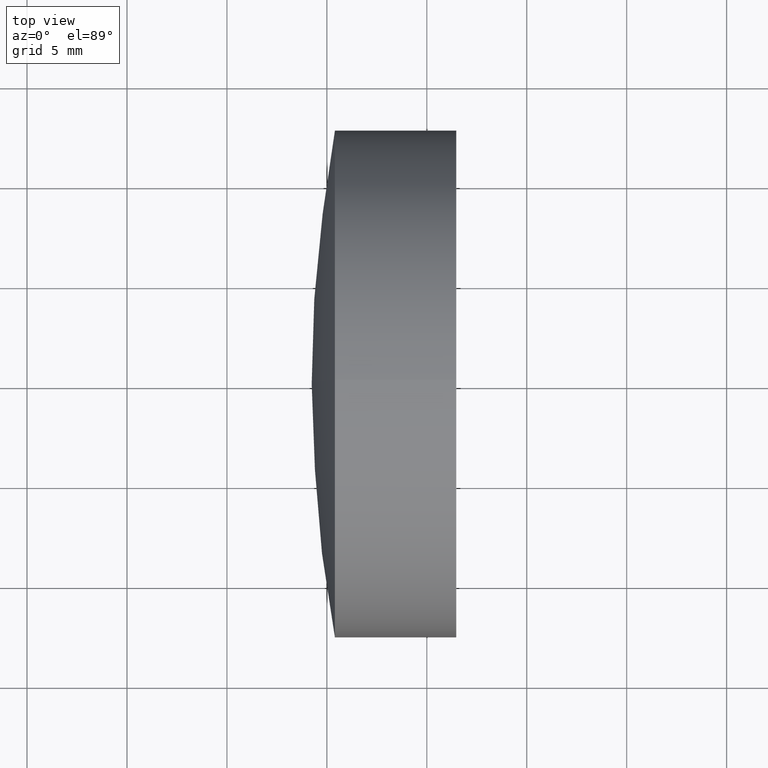
[diagram: clean part render]
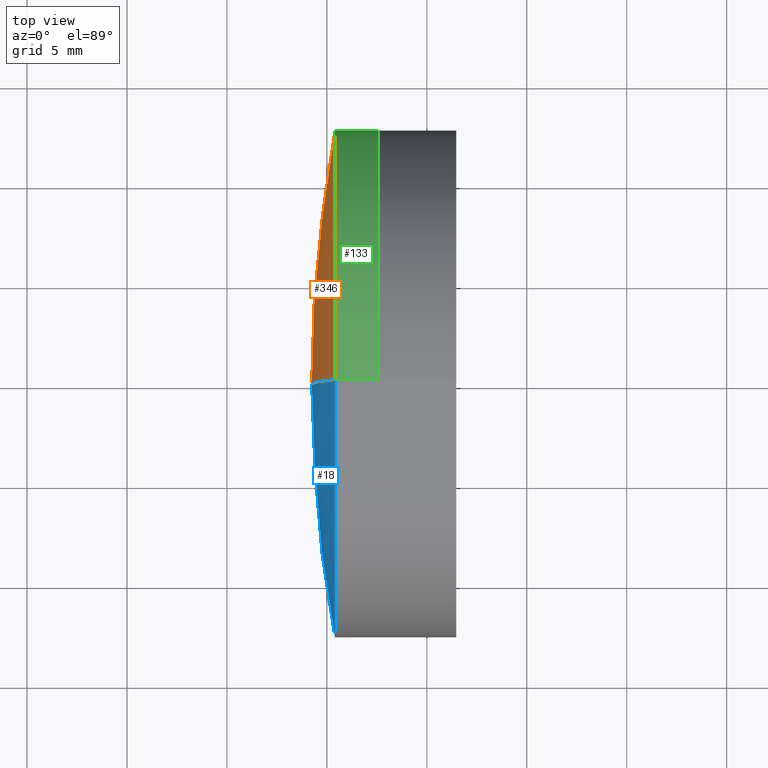
[diagram: same view with three faces highlighted in distinct colors, each labeled with its STEP entity id]
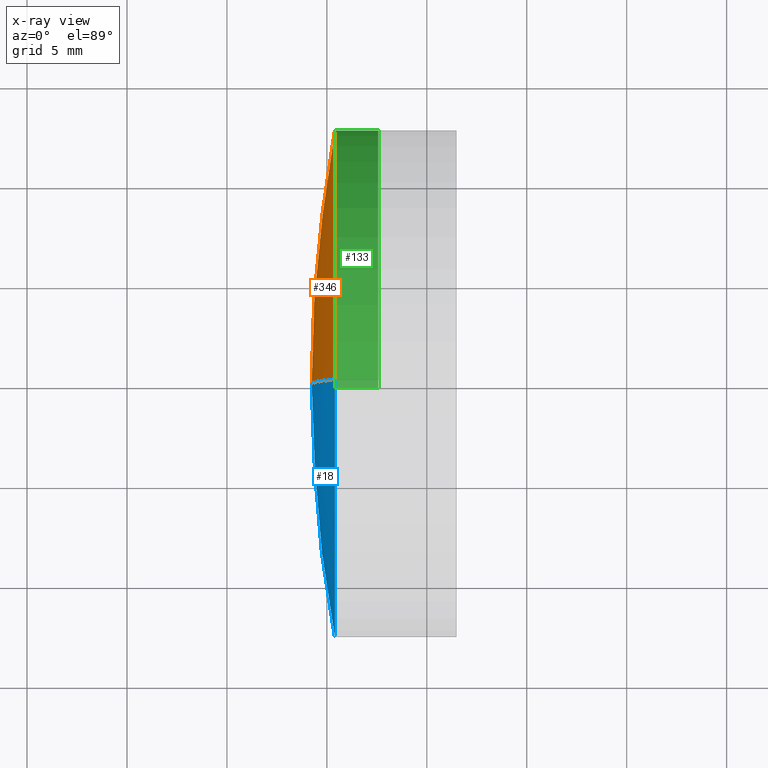
[diagram: x-ray of the same camera — body ghosted, the three highlighted faces saturated]
A machine part, top view with three faces highlighted in distinct colors.
The next image is the same camera in x-ray (body ghosted, the three faces saturated) — at least one of them is partly hidden behind the body in this view.
Their STEP definitions:

[orange] entity #346 — the highlighted spherical surface has radius 70 mm.
#2 = DIRECTION ( 'NONE',  ( -0.0000000000000000000, -1.000000000000000000, -0.0000000000000000000 ) ) ;
#22 = ORIENTED_EDGE ( 'NONE', *, *, #38, .T. ) ;
#23 = ORIENTED_EDGE ( 'NONE', *, *, #214, .F. ) ;
#38 = EDGE_CURVE ( 'NONE', #114, #129, #231, .T. ) ;
#69 = DIRECTION ( 'NONE',  ( 0.0000000000000000000, 0.0000000000000000000, 1.000000000000000000 ) ) ;
#84 = EDGE_CURVE ( 'NONE', #110, #114, #302, .T. ) ;
#86 = EDGE_LOOP ( 'NONE', ( #23, #183, #22 ) ) ;
#90 = CARTESIAN_POINT ( 'NONE',  ( 85.40345372146899200, 0.0000000000000000000, 0.0000000000000000000 ) ) ;
#95 = DIRECTION ( 'NONE',  ( 0.0000000000000000000, 1.000000000000000000, -0.0000000000000000000 ) ) ;
#99 = AXIS2_PLACEMENT_3D ( 'NONE', #282, #95, #261 ) ;
#110 = VERTEX_POINT ( 'NONE', #147 ) ;
#113 = CIRCLE ( 'NONE', #342, 70.00000000000001400 ) ;
#114 = VERTEX_POINT ( 'NONE', #116 ) ;
#116 = CARTESIAN_POINT ( 'NONE',  ( 85.40345372146899200, 0.0000000000000000000, -12.69999999999995800 ) ) ;
#129 = VERTEX_POINT ( 'NONE', #205 ) ;
#147 = CARTESIAN_POINT ( 'NONE',  ( 85.40345372146899200, -1.555301434917133500E-015, 12.70000000000001000 ) ) ;
#156 = CARTESIAN_POINT ( 'NONE',  ( 154.2417424857897000, 0.0000000000000000000, 5.060151870744320700E-014 ) ) ;
#176 = FACE_OUTER_BOUND ( 'NONE', #86, .T. ) ;
#182 = SPHERICAL_SURFACE ( 'NONE', #224, 70.00000000000001400 ) ;
#183 = ORIENTED_EDGE ( 'NONE', *, *, #84, .T. ) ;
#193 = AXIS2_PLACEMENT_3D ( 'NONE', #90, #256, #69 ) ;
#205 = CARTESIAN_POINT ( 'NONE',  ( 84.24174248578968600, 0.0000000000000000000, 4.631525491042747000E-014 ) ) ;
#206 = DIRECTION ( 'NONE',  ( 0.0000000000000000000, 1.224646799147353200E-016, -1.000000000000000000 ) ) ;
#214 = EDGE_CURVE ( 'NONE', #110, #129, #113, .T. ) ;
#217 = DIRECTION ( 'NONE',  ( 0.0000000000000000000, 0.0000000000000000000, -1.000000000000000000 ) ) ;
#224 = AXIS2_PLACEMENT_3D ( 'NONE', #326, #2, #217 ) ;
#231 = CIRCLE ( 'NONE', #99, 70.00000000000001400 ) ;
#256 = DIRECTION ( 'NONE',  ( -1.000000000000000000, -0.0000000000000000000, -0.0000000000000000000 ) ) ;
#261 = DIRECTION ( 'NONE',  ( 0.0000000000000000000, 0.0000000000000000000, 1.000000000000000000 ) ) ;
#282 = CARTESIAN_POINT ( 'NONE',  ( 154.2417424857897000, 0.0000000000000000000, 5.060151870744320700E-014 ) ) ;
#302 = CIRCLE ( 'NONE', #193, 12.70000000000001200 ) ;
#314 = DIRECTION ( 'NONE',  ( 0.0000000000000000000, -1.000000000000000000, -1.224646799147353200E-016 ) ) ;
#326 = CARTESIAN_POINT ( 'NONE',  ( 154.2417424857897000, 0.0000000000000000000, 5.060151870744320700E-014 ) ) ;
#342 = AXIS2_PLACEMENT_3D ( 'NONE', #156, #314, #206 ) ;
#346 = ADVANCED_FACE ( 'NONE', ( #176 ), #182, .T. ) ;

[blue] entity #18 — the highlighted spherical surface has radius 70 mm.
#18 = ADVANCED_FACE ( 'NONE', ( #162 ), #291, .T. ) ;
#31 = ORIENTED_EDGE ( 'NONE', *, *, #214, .T. ) ;
#38 = EDGE_CURVE ( 'NONE', #114, #129, #231, .T. ) ;
#43 = CIRCLE ( 'NONE', #248, 12.70000000000001200 ) ;
#68 = CARTESIAN_POINT ( 'NONE',  ( 85.40345372146899200, 0.0000000000000000000, 0.0000000000000000000 ) ) ;
#95 = DIRECTION ( 'NONE',  ( 0.0000000000000000000, 1.000000000000000000, -0.0000000000000000000 ) ) ;
#99 = AXIS2_PLACEMENT_3D ( 'NONE', #282, #95, #261 ) ;
#108 = EDGE_CURVE ( 'NONE', #114, #110, #43, .T. ) ;
#110 = VERTEX_POINT ( 'NONE', #147 ) ;
#113 = CIRCLE ( 'NONE', #342, 70.00000000000001400 ) ;
#114 = VERTEX_POINT ( 'NONE', #116 ) ;
#116 = CARTESIAN_POINT ( 'NONE',  ( 85.40345372146899200, 0.0000000000000000000, -12.69999999999995800 ) ) ;
#127 = DIRECTION ( 'NONE',  ( 0.0000000000000000000, 0.0000000000000000000, -1.000000000000000000 ) ) ;
#129 = VERTEX_POINT ( 'NONE', #205 ) ;
#147 = CARTESIAN_POINT ( 'NONE',  ( 85.40345372146899200, -1.555301434917133500E-015, 12.70000000000001000 ) ) ;
#156 = CARTESIAN_POINT ( 'NONE',  ( 154.2417424857897000, 0.0000000000000000000, 5.060151870744320700E-014 ) ) ;
#162 = FACE_OUTER_BOUND ( 'NONE', #300, .T. ) ;
#196 = ORIENTED_EDGE ( 'NONE', *, *, #108, .T. ) ;
#205 = CARTESIAN_POINT ( 'NONE',  ( 84.24174248578968600, 0.0000000000000000000, 4.631525491042747000E-014 ) ) ;
#206 = DIRECTION ( 'NONE',  ( 0.0000000000000000000, 1.224646799147353200E-016, -1.000000000000000000 ) ) ;
#214 = EDGE_CURVE ( 'NONE', #110, #129, #113, .T. ) ;
#226 = DIRECTION ( 'NONE',  ( -1.000000000000000000, -0.0000000000000000000, -0.0000000000000000000 ) ) ;
#231 = CIRCLE ( 'NONE', #99, 70.00000000000001400 ) ;
#234 = DIRECTION ( 'NONE',  ( 0.0000000000000000000, 0.0000000000000000000, 1.000000000000000000 ) ) ;
#237 = AXIS2_PLACEMENT_3D ( 'NONE', #313, #344, #127 ) ;
#248 = AXIS2_PLACEMENT_3D ( 'NONE', #68, #226, #234 ) ;
#255 = ORIENTED_EDGE ( 'NONE', *, *, #38, .F. ) ;
#261 = DIRECTION ( 'NONE',  ( 0.0000000000000000000, 0.0000000000000000000, 1.000000000000000000 ) ) ;
#282 = CARTESIAN_POINT ( 'NONE',  ( 154.2417424857897000, 0.0000000000000000000, 5.060151870744320700E-014 ) ) ;
#291 = SPHERICAL_SURFACE ( 'NONE', #237, 70.00000000000001400 ) ;
#300 = EDGE_LOOP ( 'NONE', ( #196, #31, #255 ) ) ;
#313 = CARTESIAN_POINT ( 'NONE',  ( 154.2417424857897000, 0.0000000000000000000, 5.060151870744320700E-014 ) ) ;
#314 = DIRECTION ( 'NONE',  ( 0.0000000000000000000, -1.000000000000000000, -1.224646799147353200E-016 ) ) ;
#342 = AXIS2_PLACEMENT_3D ( 'NONE', #156, #314, #206 ) ;
#344 = DIRECTION ( 'NONE',  ( -0.0000000000000000000, -1.000000000000000000, -0.0000000000000000000 ) ) ;

[green] entity #133 — the highlighted cylindrical surface (partial cylindrical patch) has radius 12.7 mm, axis along (-1, -0, -0).
#14 = CARTESIAN_POINT ( 'NONE',  ( -0.8160621761658039000, 0.0000000000000000000, 12.70000000000001400 ) ) ;
#28 = DIRECTION ( 'NONE',  ( 0.0000000000000000000, 0.0000000000000000000, 1.000000000000000000 ) ) ;
#46 = DIRECTION ( 'NONE',  ( -1.000000000000000000, -0.0000000000000000000, -0.0000000000000000000 ) ) ;
#48 = ORIENTED_EDGE ( 'NONE', *, *, #148, .T. ) ;
#65 = CIRCLE ( 'NONE', #225, 12.70000000000001500 ) ;
#69 = DIRECTION ( 'NONE',  ( 0.0000000000000000000, 0.0000000000000000000, 1.000000000000000000 ) ) ;
#84 = EDGE_CURVE ( 'NONE', #110, #114, #302, .T. ) ;
#88 = CARTESIAN_POINT ( 'NONE',  ( -0.8160621761658039000, 1.555301434917140200E-015, -12.70000000000001400 ) ) ;
#90 = CARTESIAN_POINT ( 'NONE',  ( 85.40345372146899200, 0.0000000000000000000, 0.0000000000000000000 ) ) ;
#100 = DIRECTION ( 'NONE',  ( -1.000000000000000000, -0.0000000000000000000, -0.0000000000000000000 ) ) ;
#102 = ORIENTED_EDGE ( 'NONE', *, *, #84, .F. ) ;
#110 = VERTEX_POINT ( 'NONE', #147 ) ;
#114 = VERTEX_POINT ( 'NONE', #116 ) ;
#116 = CARTESIAN_POINT ( 'NONE',  ( 85.40345372146899200, 0.0000000000000000000, -12.69999999999995800 ) ) ;
#119 = VERTEX_POINT ( 'NONE', #278 ) ;
#124 = EDGE_CURVE ( 'NONE', #119, #114, #134, .T. ) ;
#128 = DIRECTION ( 'NONE',  ( -1.000000000000000000, -0.0000000000000000000, -0.0000000000000000000 ) ) ;
#131 = DIRECTION ( 'NONE',  ( 0.0000000000000000000, 0.0000000000000000000, 1.000000000000000000 ) ) ;
#132 = EDGE_CURVE ( 'NONE', #145, #110, #336, .T. ) ;
#133 = ADVANCED_FACE ( 'NONE', ( #252 ), #341, .T. ) ;
#134 = LINE ( 'NONE', #88, #270 ) ;
#145 = VERTEX_POINT ( 'NONE', #329 ) ;
#147 = CARTESIAN_POINT ( 'NONE',  ( 85.40345372146899200, -1.555301434917133500E-015, 12.70000000000001000 ) ) ;
#148 = EDGE_CURVE ( 'NONE', #145, #119, #65, .T. ) ;
#186 = VECTOR ( 'NONE', #100, 1000.000000000000000 ) ;
#191 = DIRECTION ( 'NONE',  ( -1.000000000000000000, -0.0000000000000000000, -0.0000000000000000000 ) ) ;
#193 = AXIS2_PLACEMENT_3D ( 'NONE', #90, #256, #69 ) ;
#208 = EDGE_LOOP ( 'NONE', ( #48, #338, #102, #332 ) ) ;
#210 = CARTESIAN_POINT ( 'NONE',  ( -0.8160621761658039000, 0.0000000000000000000, 0.0000000000000000000 ) ) ;
#218 = CARTESIAN_POINT ( 'NONE',  ( 87.57155005280489500, 0.0000000000000000000, 0.0000000000000000000 ) ) ;
#225 = AXIS2_PLACEMENT_3D ( 'NONE', #218, #191, #28 ) ;
#252 = FACE_OUTER_BOUND ( 'NONE', #208, .T. ) ;
#256 = DIRECTION ( 'NONE',  ( -1.000000000000000000, -0.0000000000000000000, -0.0000000000000000000 ) ) ;
#270 = VECTOR ( 'NONE', #46, 1000.000000000000000 ) ;
#278 = CARTESIAN_POINT ( 'NONE',  ( 87.57155005280489500, 1.555301434917140600E-015, -12.70000000000001700 ) ) ;
#297 = AXIS2_PLACEMENT_3D ( 'NONE', #210, #128, #131 ) ;
#302 = CIRCLE ( 'NONE', #193, 12.70000000000001200 ) ;
#329 = CARTESIAN_POINT ( 'NONE',  ( 87.57155005280489500, 0.0000000000000000000, 12.70000000000001500 ) ) ;
#332 = ORIENTED_EDGE ( 'NONE', *, *, #132, .F. ) ;
#336 = LINE ( 'NONE', #14, #186 ) ;
#338 = ORIENTED_EDGE ( 'NONE', *, *, #124, .T. ) ;
#341 = CYLINDRICAL_SURFACE ( 'NONE', #297, 12.70000000000001400 ) ;